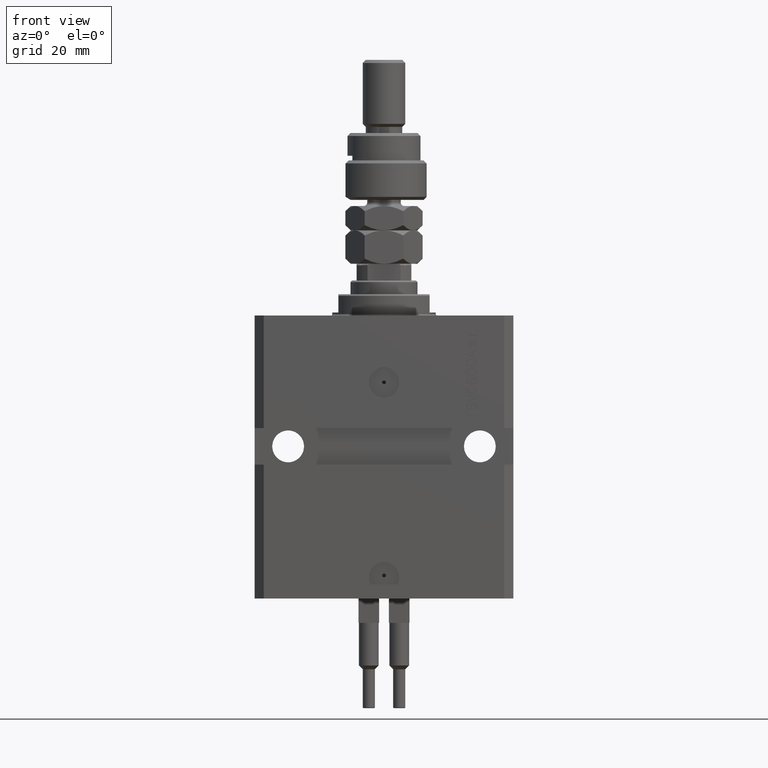
[diagram: clean part render]
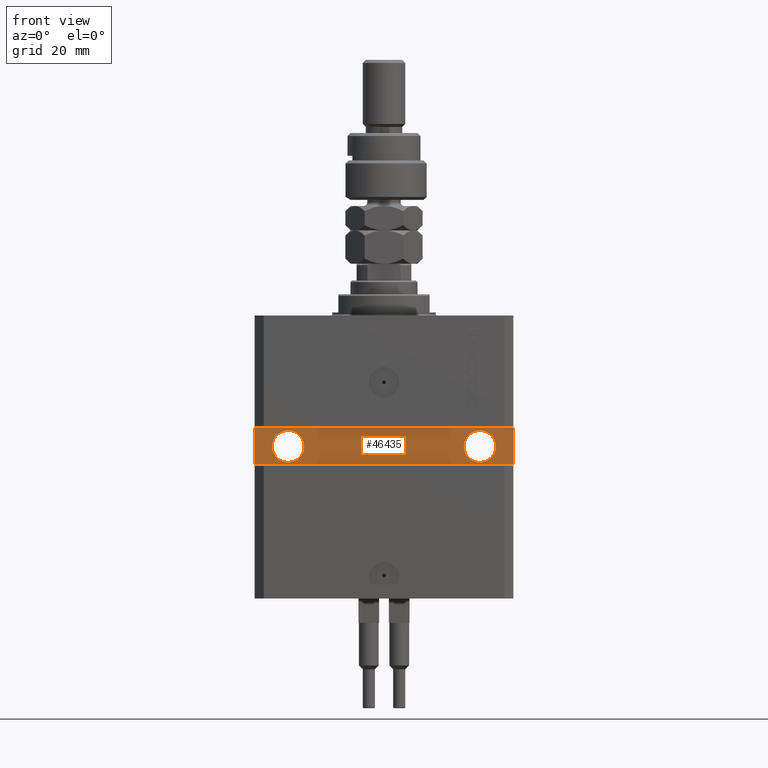
[diagram: same view with one face highlighted and labeled with its STEP entity id]
A machine part, front view. The second image highlights one B-rep face of the part: STEP entity #46435.
In plain terms, the highlighted planar face has unit normal (0, -1, 0).
Its self-contained STEP definition (entity closure, byte-faithful):
#956 = CARTESIAN_POINT ( 'NONE',  ( -31.49999999999998579, -28.50000000000000355, -43.00000000000000000 ) ) ;
#1059 = CIRCLE ( 'NONE', #10196, 5.249999999999997335 ) ;
#1426 = AXIS2_PLACEMENT_3D ( 'NONE', #956, #40326, #44186 ) ;
#2382 = CARTESIAN_POINT ( 'NONE',  ( 36.75000000000001421, -28.49999999999999645, -43.00000000000000000 ) ) ;
#2551 = CARTESIAN_POINT ( 'NONE',  ( 42.50000000000001421, -28.49999999999999289, -48.99999999999999289 ) ) ;
#3448 = ORIENTED_EDGE ( 'NONE', *, *, #26012, .F. ) ;
#4155 = DIRECTION ( 'NONE',  ( 1.000000000000000000, 1.632680918566406300E-16, 0.000000000000000000 ) ) ;
#4361 = CARTESIAN_POINT ( 'NONE',  ( 42.50000000000001421, -28.49999999999999289, -48.99999999999999289 ) ) ;
#4892 = VERTEX_POINT ( 'NONE', #2382 ) ;
#4911 = CARTESIAN_POINT ( 'NONE',  ( -42.50000000000000000, -28.50000000000000711, -48.99999999999999289 ) ) ;
#8060 = AXIS2_PLACEMENT_3D ( 'NONE', #32657, #24892, #36524 ) ;
#8335 = CARTESIAN_POINT ( 'NONE',  ( -26.24999999999998934, -28.50000000000000355, -43.00000000000000000 ) ) ;
#8424 = ORIENTED_EDGE ( 'NONE', *, *, #33064, .F. ) ;
#9991 = EDGE_CURVE ( 'NONE', #46504, #4892, #39805, .T. ) ;
#10133 = CARTESIAN_POINT ( 'NONE',  ( 31.50000000000001421, -28.49999999999999645, -43.00000000000000000 ) ) ;
#10196 = AXIS2_PLACEMENT_3D ( 'NONE', #10133, #29556, #45067 ) ;
#10931 = VERTEX_POINT ( 'NONE', #20896 ) ;
#11341 = LINE ( 'NONE', #2551, #40652 ) ;
#11528 = CARTESIAN_POINT ( 'NONE',  ( 31.50000000000001421, -28.49999999999999645, -43.00000000000000000 ) ) ;
#13124 = DIRECTION ( 'NONE',  ( -1.000000000000000000, -1.632680918566406300E-16, -2.449021377849609204E-16 ) ) ;
#14659 = VERTEX_POINT ( 'NONE', #34423 ) ;
#14696 = AXIS2_PLACEMENT_3D ( 'NONE', #42548, #19249, #43297 ) ;
#15288 = CARTESIAN_POINT ( 'NONE',  ( -42.50000000000000000, -28.50000000000000711, -48.99999999999999289 ) ) ;
#15729 = CARTESIAN_POINT ( 'NONE',  ( -36.74999999999998579, -28.50000000000000355, -43.00000000000000000 ) ) ;
#16666 = AXIS2_PLACEMENT_3D ( 'NONE', #11528, #43097, #39227 ) ;
#17267 = LINE ( 'NONE', #20637, #49878 ) ;
#17773 = VECTOR ( 'NONE', #44960, 1000.000000000000000 ) ;
#19249 = DIRECTION ( 'NONE',  ( 1.632680918566406300E-16, -1.000000000000000000, 0.000000000000000000 ) ) ;
#20200 = EDGE_CURVE ( 'NONE', #30076, #50044, #32615, .T. ) ;
#20333 = ORIENTED_EDGE ( 'NONE', *, *, #26260, .F. ) ;
#20637 = CARTESIAN_POINT ( 'NONE',  ( 42.50000000000001421, -28.49999999999999289, -36.99999999999998579 ) ) ;
#20640 = FACE_BOUND ( 'NONE', #50981, .T. ) ;
#20896 = CARTESIAN_POINT ( 'NONE',  ( 42.50000000000001421, -28.49999999999999289, -36.99999999999998579 ) ) ;
#22930 = CIRCLE ( 'NONE', #8060, 5.249999999999997335 ) ;
#24892 = DIRECTION ( 'NONE',  ( 1.101411730780568590E-16, -1.000000000000000000, 0.000000000000000000 ) ) ;
#26012 = EDGE_CURVE ( 'NONE', #26094, #29204, #22930, .T. ) ;
#26094 = VERTEX_POINT ( 'NONE', #8335 ) ;
#26260 = EDGE_CURVE ( 'NONE', #29204, #26094, #46898, .T. ) ;
#26376 = DIRECTION ( 'NONE',  ( 0.000000000000000000, 0.000000000000000000, 1.000000000000000000 ) ) ;
#26794 = EDGE_LOOP ( 'NONE', ( #42594, #38292, #48774, #31642 ) ) ;
#28920 = FACE_BOUND ( 'NONE', #34167, .T. ) ;
#28925 = CARTESIAN_POINT ( 'NONE',  ( -42.50000000000000000, -28.50000000000000711, -37.00000000000000711 ) ) ;
#29204 = VERTEX_POINT ( 'NONE', #15729 ) ;
#29556 = DIRECTION ( 'NONE',  ( 1.037025423586453699E-16, -1.000000000000000000, 1.848892746611746419E-32 ) ) ;
#30076 = VERTEX_POINT ( 'NONE', #15288 ) ;
#30392 = EDGE_CURVE ( 'NONE', #50044, #10931, #11341, .T. ) ;
#31642 = ORIENTED_EDGE ( 'NONE', *, *, #40629, .T. ) ;
#32296 = ORIENTED_EDGE ( 'NONE', *, *, #9991, .F. ) ;
#32615 = LINE ( 'NONE', #4911, #40056 ) ;
#32657 = CARTESIAN_POINT ( 'NONE',  ( -31.49999999999998579, -28.50000000000000355, -43.00000000000000000 ) ) ;
#33064 = EDGE_CURVE ( 'NONE', #4892, #46504, #1059, .T. ) ;
#34167 = EDGE_LOOP ( 'NONE', ( #3448, #20333 ) ) ;
#34423 = CARTESIAN_POINT ( 'NONE',  ( -42.50000000000000000, -28.50000000000000711, -37.00000000000000711 ) ) ;
#35025 = CARTESIAN_POINT ( 'NONE',  ( 26.25000000000001776, -28.49999999999999645, -43.00000000000000000 ) ) ;
#36002 = EDGE_CURVE ( 'NONE', #10931, #14659, #17267, .T. ) ;
#36524 = DIRECTION ( 'NONE',  ( 1.000000000000000000, 0.000000000000000000, 0.000000000000000000 ) ) ;
#38292 = ORIENTED_EDGE ( 'NONE', *, *, #30392, .T. ) ;
#39227 = DIRECTION ( 'NONE',  ( 1.000000000000000000, 0.000000000000000000, 0.000000000000000000 ) ) ;
#39805 = CIRCLE ( 'NONE', #16666, 5.249999999999997335 ) ;
#40056 = VECTOR ( 'NONE', #4155, 1000.000000000000000 ) ;
#40326 = DIRECTION ( 'NONE',  ( 1.101411730780568590E-16, -1.000000000000000000, 0.000000000000000000 ) ) ;
#40629 = EDGE_CURVE ( 'NONE', #14659, #30076, #45227, .T. ) ;
#40652 = VECTOR ( 'NONE', #26376, 1000.000000000000000 ) ;
#42548 = CARTESIAN_POINT ( 'NONE',  ( 4.790119779726142858E-15, -28.50000000000000000, 0.000000000000000000 ) ) ;
#42594 = ORIENTED_EDGE ( 'NONE', *, *, #20200, .T. ) ;
#42800 = PLANE ( 'NONE',  #14696 ) ;
#43097 = DIRECTION ( 'NONE',  ( 1.037025423586453699E-16, -1.000000000000000000, 1.848892746611746419E-32 ) ) ;
#43297 = DIRECTION ( 'NONE',  ( 1.000000000000000000, 1.632680918566406300E-16, 0.000000000000000000 ) ) ;
#44186 = DIRECTION ( 'NONE',  ( 1.000000000000000000, 0.000000000000000000, 0.000000000000000000 ) ) ;
#44960 = DIRECTION ( 'NONE',  ( 0.000000000000000000, 0.000000000000000000, -1.000000000000000000 ) ) ;
#45067 = DIRECTION ( 'NONE',  ( 1.000000000000000000, 0.000000000000000000, 0.000000000000000000 ) ) ;
#45227 = LINE ( 'NONE', #28925, #17773 ) ;
#46435 = ADVANCED_FACE ( 'NONE', ( #20640, #28920, #49114 ), #42800, .T. ) ;
#46504 = VERTEX_POINT ( 'NONE', #35025 ) ;
#46898 = CIRCLE ( 'NONE', #1426, 5.249999999999997335 ) ;
#48774 = ORIENTED_EDGE ( 'NONE', *, *, #36002, .T. ) ;
#49114 = FACE_OUTER_BOUND ( 'NONE', #26794, .T. ) ;
#49878 = VECTOR ( 'NONE', #13124, 1000.000000000000000 ) ;
#50044 = VERTEX_POINT ( 'NONE', #4361 ) ;
#50981 = EDGE_LOOP ( 'NONE', ( #8424, #32296 ) ) ;